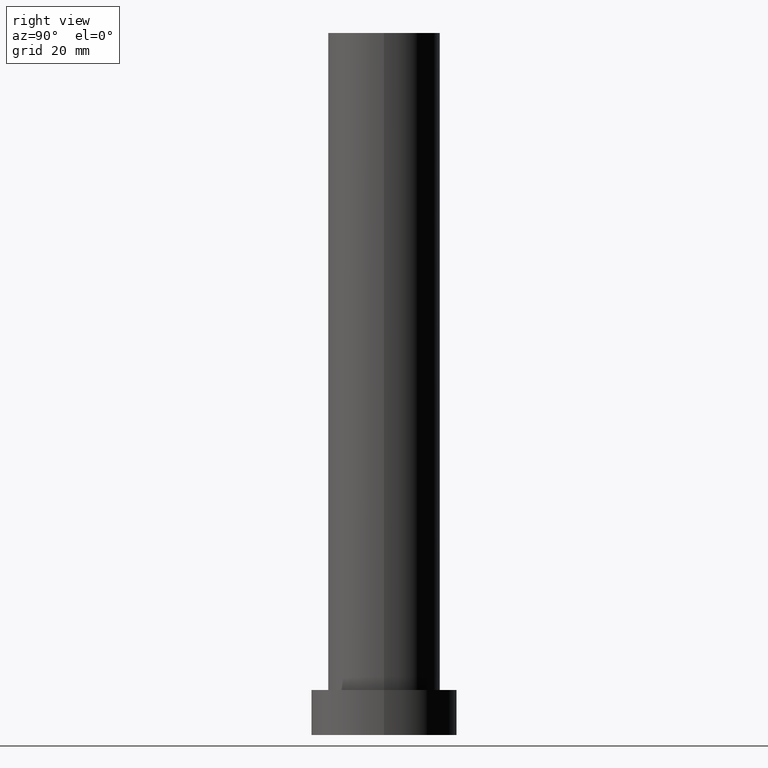
[diagram: clean part render]
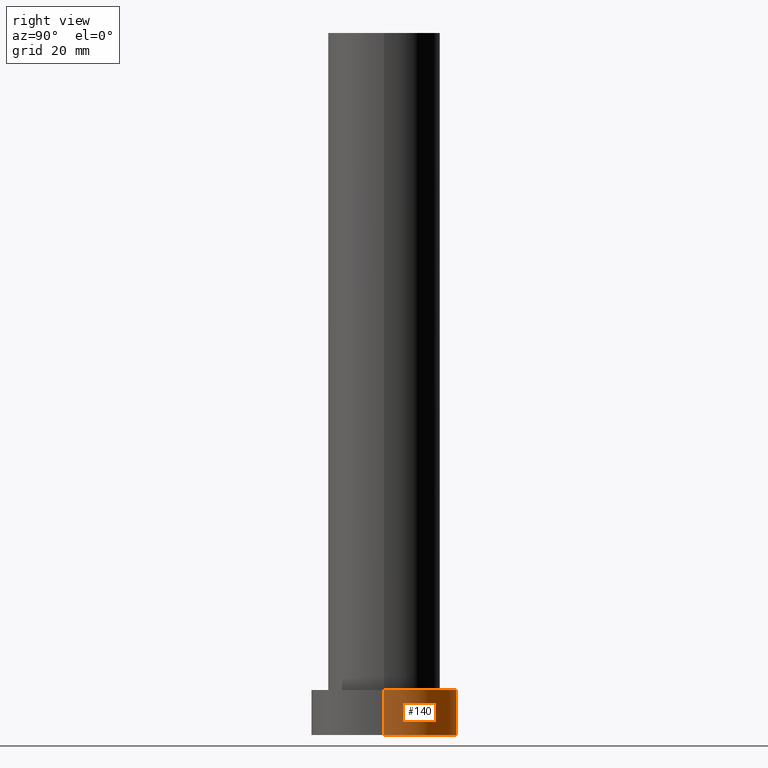
[diagram: same view with one face highlighted and labeled with its STEP entity id]
A machine part, right view. The second image highlights one B-rep face of the part: STEP entity #140.
In plain terms, the highlighted cylindrical surface (partial cylindrical patch) has radius 13 mm, axis along (-0, -0, -1).
Its self-contained STEP definition (entity closure, byte-faithful):
#13 = CARTESIAN_POINT ( 'NONE',  ( 13.00000000000000178, 1.592040838891559293E-15, 0.000000000000000000 ) ) ;
#17 = DIRECTION ( 'NONE',  ( -0.000000000000000000, -0.000000000000000000, -1.000000000000000000 ) ) ;
#25 = ORIENTED_EDGE ( 'NONE', *, *, #227, .T. ) ;
#35 = EDGE_CURVE ( 'NONE', #200, #111, #133, .T. ) ;
#36 = DIRECTION ( 'NONE',  ( 1.000000000000000000, 0.000000000000000000, 0.000000000000000000 ) ) ;
#38 = LINE ( 'NONE', #244, #179 ) ;
#42 = VERTEX_POINT ( 'NONE', #169 ) ;
#47 = CIRCLE ( 'NONE', #223, 13.00000000000000178 ) ;
#53 = CARTESIAN_POINT ( 'NONE',  ( 13.00000000000000178, 1.592040838891559293E-15, 8.000000000000000000 ) ) ;
#56 = EDGE_CURVE ( 'NONE', #143, #42, #38, .T. ) ;
#67 = ORIENTED_EDGE ( 'NONE', *, *, #194, .F. ) ;
#81 = ORIENTED_EDGE ( 'NONE', *, *, #35, .T. ) ;
#85 = CARTESIAN_POINT ( 'NONE',  ( 13.00000000000000178, 1.592040838891559293E-15, 8.000000000000000000 ) ) ;
#92 = VECTOR ( 'NONE', #202, 1000.000000000000000 ) ;
#93 = FACE_OUTER_BOUND ( 'NONE', #128, .T. ) ;
#111 = VERTEX_POINT ( 'NONE', #13 ) ;
#128 = EDGE_LOOP ( 'NONE', ( #67, #81, #25, #222 ) ) ;
#133 = LINE ( 'NONE', #85, #92 ) ;
#140 = ADVANCED_FACE ( 'NONE', ( #93 ), #154, .T. ) ;
#143 = VERTEX_POINT ( 'NONE', #225 ) ;
#149 = CARTESIAN_POINT ( 'NONE',  ( 0.000000000000000000, 0.000000000000000000, 0.000000000000000000 ) ) ;
#150 = DIRECTION ( 'NONE',  ( 0.000000000000000000, 0.000000000000000000, 1.000000000000000000 ) ) ;
#153 = CARTESIAN_POINT ( 'NONE',  ( 0.000000000000000000, 0.000000000000000000, 8.000000000000000000 ) ) ;
#154 = CYLINDRICAL_SURFACE ( 'NONE', #234, 13.00000000000000178 ) ;
#160 = AXIS2_PLACEMENT_3D ( 'NONE', #149, #207, #36 ) ;
#169 = CARTESIAN_POINT ( 'NONE',  ( -13.00000000000000178, 0.000000000000000000, 0.000000000000000000 ) ) ;
#179 = VECTOR ( 'NONE', #17, 1000.000000000000000 ) ;
#183 = CIRCLE ( 'NONE', #160, 13.00000000000000178 ) ;
#194 = EDGE_CURVE ( 'NONE', #200, #143, #47, .T. ) ;
#200 = VERTEX_POINT ( 'NONE', #53 ) ;
#202 = DIRECTION ( 'NONE',  ( -0.000000000000000000, -0.000000000000000000, -1.000000000000000000 ) ) ;
#207 = DIRECTION ( 'NONE',  ( 0.000000000000000000, 0.000000000000000000, 1.000000000000000000 ) ) ;
#208 = DIRECTION ( 'NONE',  ( -0.000000000000000000, -0.000000000000000000, -1.000000000000000000 ) ) ;
#211 = CARTESIAN_POINT ( 'NONE',  ( 0.000000000000000000, 0.000000000000000000, 8.000000000000000000 ) ) ;
#222 = ORIENTED_EDGE ( 'NONE', *, *, #56, .F. ) ;
#223 = AXIS2_PLACEMENT_3D ( 'NONE', #211, #150, #228 ) ;
#225 = CARTESIAN_POINT ( 'NONE',  ( -13.00000000000000178, 0.000000000000000000, 8.000000000000000000 ) ) ;
#227 = EDGE_CURVE ( 'NONE', #111, #42, #183, .T. ) ;
#228 = DIRECTION ( 'NONE',  ( 1.000000000000000000, 0.000000000000000000, 0.000000000000000000 ) ) ;
#234 = AXIS2_PLACEMENT_3D ( 'NONE', #153, #208, #246 ) ;
#244 = CARTESIAN_POINT ( 'NONE',  ( -13.00000000000000178, 0.000000000000000000, 8.000000000000000000 ) ) ;
#246 = DIRECTION ( 'NONE',  ( -1.000000000000000000, 0.000000000000000000, 0.000000000000000000 ) ) ;